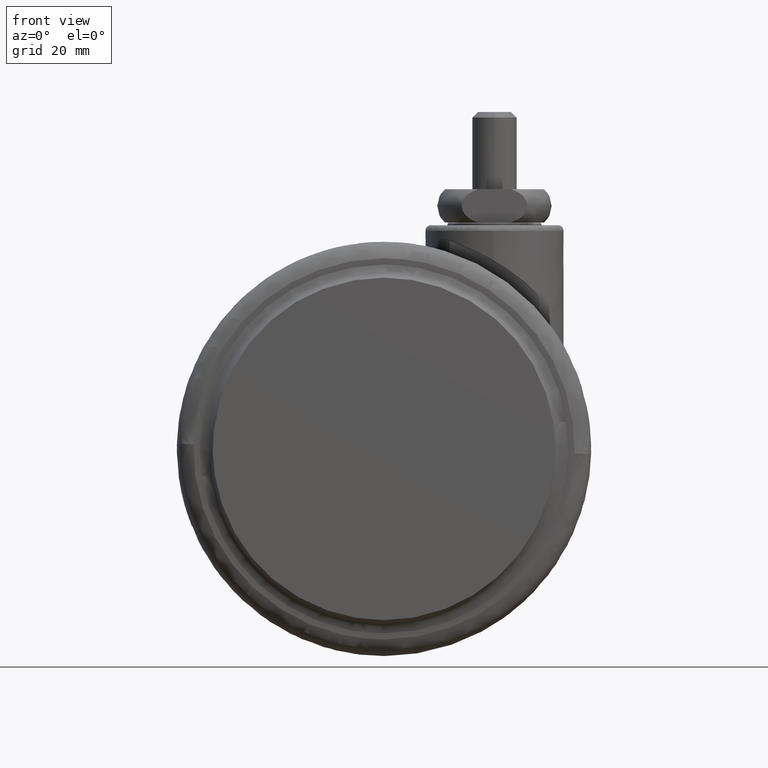
[diagram: clean part render]
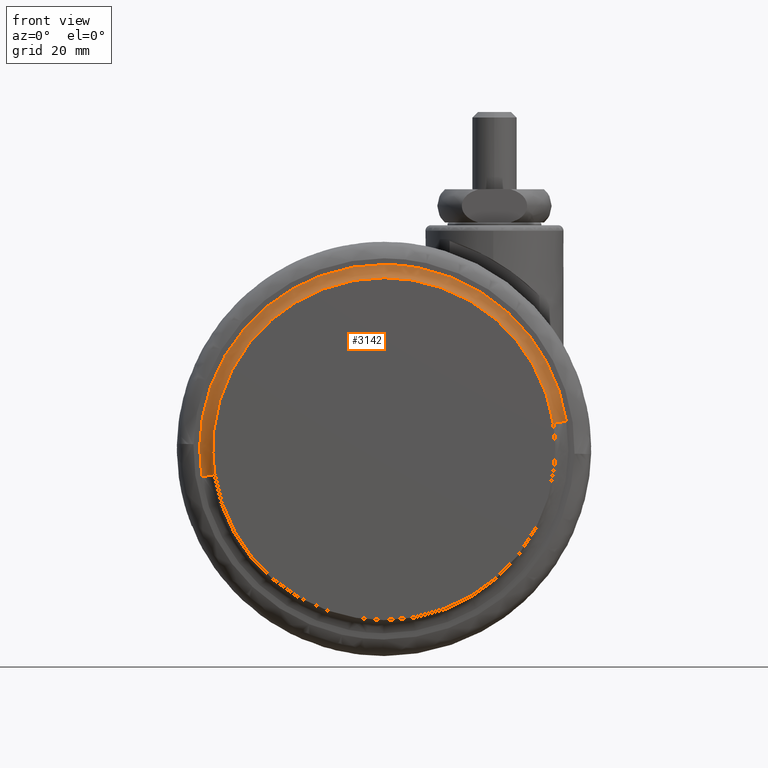
[diagram: same view with one face highlighted and labeled with its STEP entity id]
A machine part, front view. The second image highlights one B-rep face of the part: STEP entity #3142.
In plain terms, the highlighted face is a freeform B-spline surface patch.
Its self-contained STEP definition (entity closure, byte-faithful):
#2918=CARTESIAN_POINT('',(13.004433128609440,-21.499999999814150,-35.484977837914862));
#2919=VERTEX_POINT('',#2918);
#2935=CARTESIAN_POINT('',(-53.004433128609449,-21.499999999814161,-45.515022162085153));
#2936=VERTEX_POINT('',#2935);
#2950=CARTESIAN_POINT('',(-20.0,-21.500000000000000,-7.116724942436252));
#2951=VERTEX_POINT('',#2950);
#2952=CARTESIAN_POINT('',(-20.0,-21.500000000000000,-7.116724942436252));
#2953=CARTESIAN_POINT('',(-53.383275056660736,-21.499999999920124,-7.116724942299039));
#2954=CARTESIAN_POINT('',(-53.383275055610142,-21.499999999827210,-40.499999999703149));
#2955=CARTESIAN_POINT('',(-53.383275055530767,-21.499999999820197,-43.021820210633315));
#2956=CARTESIAN_POINT('',(-53.004433128609449,-21.499999999814154,-45.515022162085153));
#2964=(BOUNDED_CURVE()B_SPLINE_CURVE(2,(#2952,#2953,#2954,#2955,#2956),.UNSPECIFIED.,.F.,.U.)B_SPLINE_CURVE_WITH_KNOTS((3,2,3),(0.500000000000000,0.750000000000000,0.775897584623980),.UNSPECIFIED.)CURVE()GEOMETRIC_REPRESENTATION_ITEM()RATIONAL_B_SPLINE_CURVE((1.0,0.707106781186547,1.0,0.969659092319955,0.945604234433608))REPRESENTATION_ITEM(''));
#2965=EDGE_CURVE('',#2951,#2936,#2964,.T.);
#2967=CARTESIAN_POINT('',(13.004433128609438,-21.499999999814154,-35.484977837914855));
#2968=CARTESIAN_POINT('',(8.693878350110213,-21.499999999907082,-7.116724942595894));
#2969=CARTESIAN_POINT('',(-20.0,-21.500000000000000,-7.116724942436252));
#2977=(BOUNDED_CURVE()B_SPLINE_CURVE(2,(#2967,#2968,#2969),.UNSPECIFIED.,.F.,.U.)B_SPLINE_CURVE_WITH_KNOTS((3,3),(0.275897584623980,0.500000000000000),.UNSPECIFIED.)CURVE()GEOMETRIC_REPRESENTATION_ITEM()RATIONAL_B_SPLINE_CURVE((0.945604234433608,0.737447688866593,1.0))REPRESENTATION_ITEM(''));
#2978=EDGE_CURVE('',#2919,#2951,#2977,.T.);
#3014=CARTESIAN_POINT('',(10.648204086947260,-23.499999999140972,-35.843006737229253));
#3015=VERTEX_POINT('',#3014);
#3016=CARTESIAN_POINT('',(10.648204086947256,-23.499999999140968,-35.843006737229246));
#3017=CARTESIAN_POINT('',(10.837666864718962,-21.308362473418075,-35.814217876437766));
#3018=CARTESIAN_POINT('',(13.004433128609442,-21.499999999814154,-35.484977837914855));
#3026=(BOUNDED_CURVE()B_SPLINE_CURVE(2,(#3016,#3017,#3018),.UNSPECIFIED.,.F.,.U.)B_SPLINE_CURVE_WITH_KNOTS((3,3),(-1.724209565164943,-0.264358934360544),.UNSPECIFIED.)CURVE()GEOMETRIC_REPRESENTATION_ITEM()RATIONAL_B_SPLINE_CURVE((0.884168488113474,0.626637108860881,0.888233568479345))REPRESENTATION_ITEM(''));
#3027=EDGE_CURVE('',#3015,#2919,#3026,.T.);
#3046=CARTESIAN_POINT('',(-50.648204086947260,-23.499999999140972,-45.156993262770747));
#3047=VERTEX_POINT('',#3046);
#3061=CARTESIAN_POINT('',(-50.648204086947260,-23.499999999140964,-45.156993262770754));
#3062=CARTESIAN_POINT('',(-50.837666864718983,-21.308362473418072,-45.185782123562241));
#3063=CARTESIAN_POINT('',(-53.004433128609449,-21.499999999814158,-45.515022162085153));
#3071=(BOUNDED_CURVE()B_SPLINE_CURVE(2,(#3061,#3062,#3063),.UNSPECIFIED.,.F.,.U.)B_SPLINE_CURVE_WITH_KNOTS((3,3),(-1.724209565164938,-0.264358934360535),.UNSPECIFIED.)CURVE()GEOMETRIC_REPRESENTATION_ITEM()RATIONAL_B_SPLINE_CURVE((0.884168488113472,0.626637108860880,0.888233568479348))REPRESENTATION_ITEM(''));
#3072=EDGE_CURVE('',#3047,#2936,#3071,.T.);
#3077=CARTESIAN_POINT('',(10.770428663722328,-23.653227525717526,-36.700814555967042));
#3078=CARTESIAN_POINT('',(10.705727361903827,-23.653227525717536,-36.275007905421944));
#3079=CARTESIAN_POINT('',(5.984480656841412,-23.653227525717536,-5.203944582474812));
#3080=CARTESIAN_POINT('',(-24.655787380341888,-23.653227525717540,-9.859731962816699));
#3081=CARTESIAN_POINT('',(-55.296055417525181,-23.653227525717536,-14.515519343158587));
#3082=CARTESIAN_POINT('',(-50.574808712454505,-23.653227525717533,-45.586582666160240));
#3083=CARTESIAN_POINT('',(-50.510107410627910,-23.653227525717529,-46.012389316758586));
#3084=CARTESIAN_POINT('',(10.814279000540434,-21.123925171574399,-36.695400411004158));
#3085=CARTESIAN_POINT('',(10.749485494160590,-21.123925171574392,-36.268986951719093));
#3086=CARTESIAN_POINT('',(6.021510632643776,-21.123925171574392,-5.153644863373610));
#3087=CARTESIAN_POINT('',(-24.662422251991309,-21.123925171574403,-9.816067115364914));
#3088=CARTESIAN_POINT('',(-55.346355136626393,-21.123925171574392,-14.478489367356225));
#3089=CARTESIAN_POINT('',(-50.618380275101273,-21.123925171574406,-45.593831455756309));
#3090=CARTESIAN_POINT('',(-50.553586768713345,-21.123925171574395,-46.020244915094700));
#3091=CARTESIAN_POINT('',(13.295131359007193,-21.518574478330702,-36.389092745547615));
#3092=CARTESIAN_POINT('',(13.225121338455038,-21.518574478330699,-35.928348811221070));
#3093=CARTESIAN_POINT('',(8.116498025427813,-21.518574478330692,-2.307915826443515));
#3094=CARTESIAN_POINT('',(-25.037793074064329,-21.518574478330699,-7.345708900507846));
#3095=CARTESIAN_POINT('',(-58.192084173556488,-21.518574478330692,-12.383501974572185));
#3096=CARTESIAN_POINT('',(-53.083460860520304,-21.518574478330695,-46.003934959408738));
#3097=CARTESIAN_POINT('',(-53.013450839959383,-21.518574478330695,-46.464678893792914));
#3105=(BOUNDED_SURFACE()B_SPLINE_SURFACE(2,2,((#3077,#3084,#3091),(#3078,#3085,#3092),(#3079,#3086,#3093),(#3080,#3087,#3094),(#3081,#3088,#3095),(#3082,#3089,#3096),(#3083,#3090,#3097)),.UNSPECIFIED.,.F.,.F.,.U.)B_SPLINE_SURFACE_WITH_KNOTS((3,1,2,1,3),(3,3),(0.0,1.111247279712246,56.673611266297932,112.235975252883610,113.347222532737310),(0.0,4.010137234199059),.UNSPECIFIED.)GEOMETRIC_REPRESENTATION_ITEM()RATIONAL_B_SPLINE_SURFACE(((0.921866358362129,0.606433994689932,0.926389929177890),(0.916528724532026,0.602922723694500,0.921026103737257),(0.644309399192096,0.423847902924391,0.647471006260266),(0.911191090701923,0.599411452699068,0.915662278296624),(0.644309399192096,0.423847902924391,0.647471006260266),(0.916528724532705,0.602922723694947,0.921026103737940),(0.921866358363488,0.606433994690826,0.926389929179256)))REPRESENTATION_ITEM('')SURFACE());
#3106=ORIENTED_EDGE('',*,*,#2965,.T.);
#3107=ORIENTED_EDGE('',*,*,#3072,.F.);
#3108=CARTESIAN_POINT('',(-20.0,-23.500000000000000,-9.500000000000002));
#3109=VERTEX_POINT('',#3108);
#3110=CARTESIAN_POINT('',(-20.0,-23.500000000000000,-9.500000000000002));
#3111=CARTESIAN_POINT('',(-51.000000000031974,-23.499999999630823,-9.500000000004851));
#3112=CARTESIAN_POINT('',(-51.000000000069129,-23.499999999201300,-40.500000000010488));
#3113=CARTESIAN_POINT('',(-51.000000000071942,-23.499999999168857,-42.841784213904745));
#3114=CARTESIAN_POINT('',(-50.648204086947260,-23.499999999140968,-45.156993262770762));
#3122=(BOUNDED_CURVE()B_SPLINE_CURVE(2,(#3110,#3111,#3112,#3113,#3114),.UNSPECIFIED.,.F.,.U.)B_SPLINE_CURVE_WITH_KNOTS((3,2,3),(0.500000000000000,0.750000000000000,0.775897584623553),.UNSPECIFIED.)CURVE()GEOMETRIC_REPRESENTATION_ITEM()RATIONAL_B_SPLINE_CURVE((1.0,0.707106781186548,1.0,0.969659092320456,0.945604234434402))REPRESENTATION_ITEM(''));
#3123=EDGE_CURVE('',#3109,#3047,#3122,.T.);
#3124=ORIENTED_EDGE('',*,*,#3123,.F.);
#3125=CARTESIAN_POINT('',(10.648204086947262,-23.499999999140975,-35.843006737229246));
#3126=CARTESIAN_POINT('',(6.645385372037931,-23.499999999570491,-9.499999999994349));
#3127=CARTESIAN_POINT('',(-20.0,-23.500000000000000,-9.500000000000002));
#3135=(BOUNDED_CURVE()B_SPLINE_CURVE(2,(#3125,#3126,#3127),.UNSPECIFIED.,.F.,.U.)B_SPLINE_CURVE_WITH_KNOTS((3,3),(0.275897584623553,0.500000000000000),.UNSPECIFIED.)CURVE()GEOMETRIC_REPRESENTATION_ITEM()RATIONAL_B_SPLINE_CURVE((0.945604234434402,0.737447688866092,1.0))REPRESENTATION_ITEM(''));
#3136=EDGE_CURVE('',#3015,#3109,#3135,.T.);
#3137=ORIENTED_EDGE('',*,*,#3136,.F.);
#3138=ORIENTED_EDGE('',*,*,#3027,.T.);
#3139=ORIENTED_EDGE('',*,*,#2978,.T.);
#3140=EDGE_LOOP('',(#3106,#3107,#3124,#3137,#3138,#3139));
#3141=FACE_OUTER_BOUND('',#3140,.T.);
#3142=ADVANCED_FACE('',(#3141),#3105,.F.);